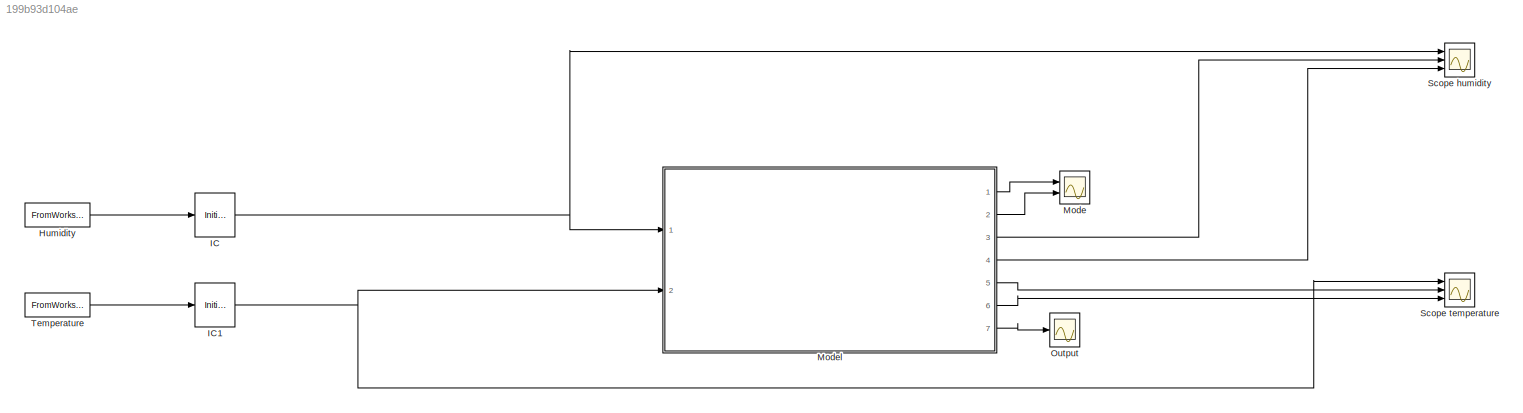
MODEL slx_199b93d104ae
KIND model
CONFIG AbsTol = auto
CONFIG EnableMultiTasking = off
CONFIG FixedStep = 1
CONFIG MaxStep = auto
CONFIG MinStep = auto
CONFIG RelTol = 1e-3
CONFIG SampleTimeConstraint = Unconstrained
CONFIG Solver = FixedStepAuto
CONFIG SolverName = FixedStepAuto
CONFIG StartTime = 0.0
CONFIG StopTime = 25000.0
BLOCK [FromWorkspace] Humidity
  OutDataTypeStr = double
  SampleTime = -1
  VariableName = TT_h1
BLOCK [InitialCondition] IC
  Value = 50
BLOCK [InitialCondition] IC1
  Value = 25
BLOCK [Scope] Mode
  Floating = off
  NumInputPorts = 2
  Ports = [2]
  ScopeSpecificationString = Simulink.scopes.TimeScopeBlockCfg('CurrentConfiguration', extmgr.ConfigurationSet(extmgr.Configuration('Core','General UI',true),extmgr.Configuration('Core','Source UI',true),extmgr.Configuration('Sources','WiredSimulink',true,'DataLoggingVariableName','ScopeData2'),extmgr.Configuration('Visuals','Time Domain',true,'SerializedDisplays',{struct('MinYLimReal','-0.5','MaxYLimReal','4.5','YLabelReal',...<+1365ch>
BLOCK [ModelReference] Model
  ModelNameDialog = fan_controller.slx
  ModelReferenceVersion = 1.7
  Ports = [2, 7]
BLOCK [Scope] Output
  Floating = off
  NumInputPorts = 1
  Ports = [1]
  ScopeSpecificationString = Simulink.scopes.TimeScopeBlockCfg('CurrentConfiguration', extmgr.ConfigurationSet(extmgr.Configuration('Core','General UI',true),extmgr.Configuration('Core','Source UI',true),extmgr.Configuration('Sources','WiredSimulink',true,'DataLoggingVariableName','ScopeData3'),extmgr.Configuration('Visuals','Time Domain',true,'SerializedDisplays',{struct('MinYLimReal','-30.87495','MaxYLimReal','34.87499','YL...<+1417ch>
BLOCK [Scope] Scope humidity
  Floating = off
  NumInputPorts = 3
  Ports = [3]
  ScopeSpecificationString = Simulink.scopes.TimeScopeBlockCfg('CurrentConfiguration', extmgr.ConfigurationSet(extmgr.Configuration('Core','General UI',true),extmgr.Configuration('Core','Source UI',true),extmgr.Configuration('Sources','WiredSimulink',true),extmgr.Configuration('Visuals','Time Domain',true,'SerializedDisplays',{struct('MinYLimReal','-61.75166','MaxYLimReal','102.94639','YLabelReal','','MinYLimMag','0.00000','M...<+1380ch>
BLOCK [Scope] Scope temperature
  Floating = off
  NumInputPorts = 3
  Ports = [3]
  ScopeSpecificationString = Simulink.scopes.TimeScopeBlockCfg('CurrentConfiguration', extmgr.ConfigurationSet(extmgr.Configuration('Core','General UI',true),extmgr.Configuration('Core','Source UI',true),extmgr.Configuration('Sources','WiredSimulink',true,'DataLoggingVariableName','ScopeData1'),extmgr.Configuration('Visuals','Time Domain',true,'SerializedDisplays',{struct('MinYLimReal','-30.87495','MaxYLimReal','34.87499','YL...<+1417ch>
BLOCK [FromWorkspace] Temperature
  OutDataTypeStr = double
  OutputAfterFinalValue = Holding final value
  SampleTime = -1
  VariableName = TT_t1
LINE Humidity:1 -> IC:1
NET IC1:1 -> Model:2, Scope temperature:1
NET IC:1 -> Model:1, Scope humidity:1
LINE Model:1 -> Mode:1
LINE Model:2 -> Mode:2
LINE Model:3 -> Scope humidity:2
LINE Model:4 -> Scope humidity:3
LINE Model:5 -> Scope temperature:2
LINE Model:6 -> Scope temperature:3
LINE Model:7 -> Output:1
LINE Temperature:1 -> IC1:1
note: NET lines group one-source signal fan-out (src -> all destinations, sorted); 1:1 wires keep LINE
